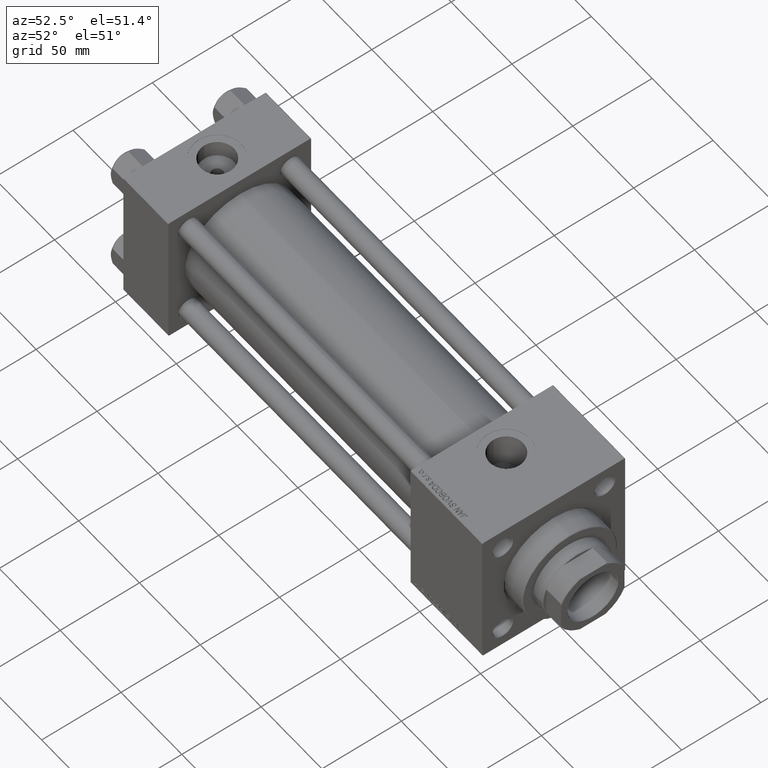
[diagram: clean part render]
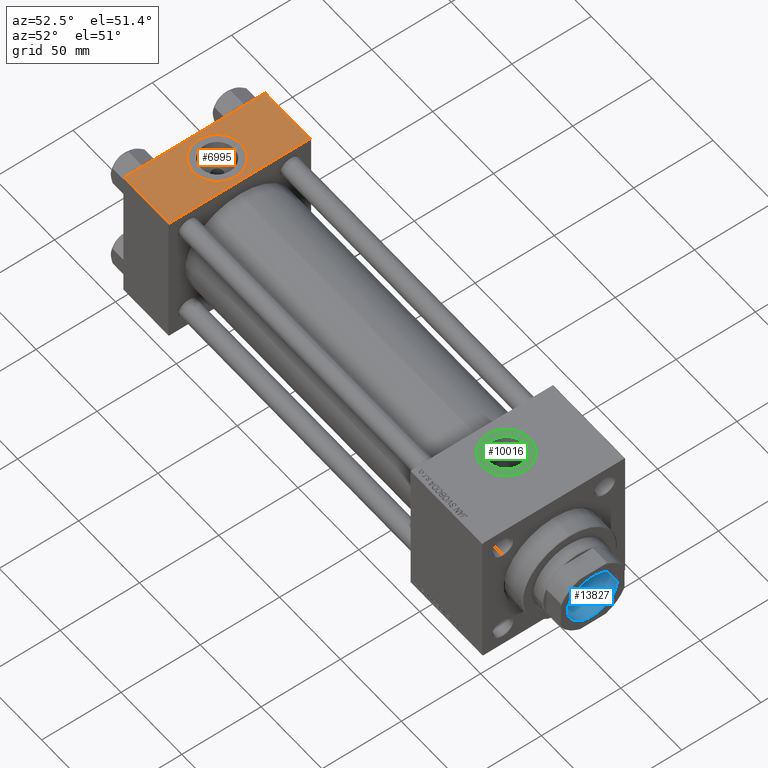
[diagram: same view with three faces highlighted in distinct colors, each labeled with its STEP entity id]
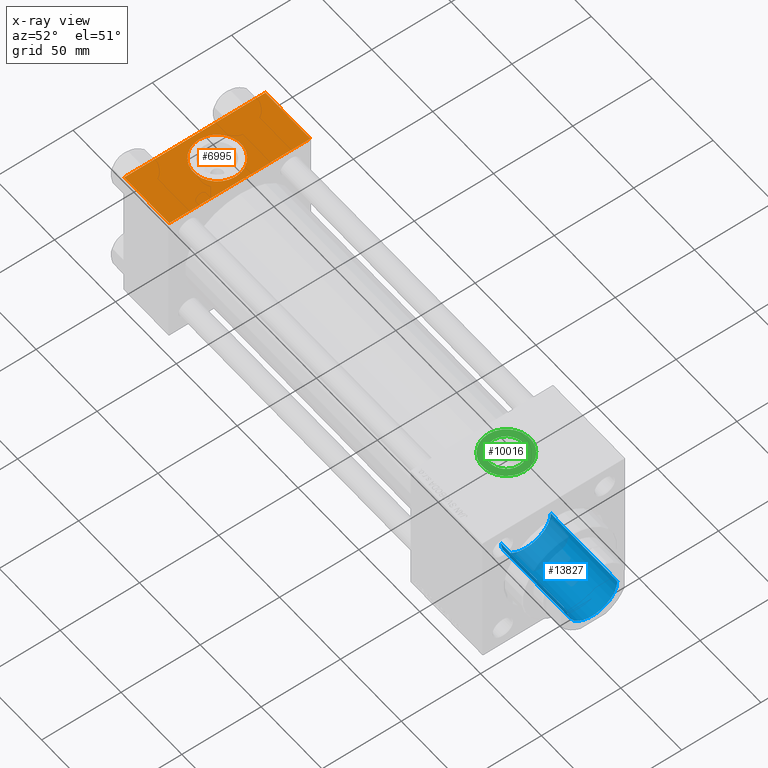
[diagram: x-ray of the same camera — body ghosted, the three highlighted faces saturated]
A machine part, auxiliary view with three faces highlighted in distinct colors.
The next image is the same camera in x-ray (body ghosted, the three faces saturated) — at least one of them is partly hidden behind the body in this view.
Their STEP definitions:

[orange] entity #6995 — the highlighted planar face has unit normal (0, 0, -1).
#206 = VERTEX_POINT ( 'NONE', #33917 ) ;
#226 = VECTOR ( 'NONE', #32681, 1000.000000000000000 ) ;
#262 = DIRECTION ( 'NONE',  ( 1.000000000000000000, 0.000000000000000000, 0.000000000000000000 ) ) ;
#1769 = CARTESIAN_POINT ( 'NONE',  ( 37.00000000000000000, 44.99999999999998579, 45.00000000000001421 ) ) ;
#2998 = EDGE_LOOP ( 'NONE', ( #35804, #23303, #18539, #45875 ) ) ;
#4481 = CARTESIAN_POINT ( 'NONE',  ( 0.000000000000000000, 44.49999999999998579, 45.00000000000001421 ) ) ;
#5704 = DIRECTION ( 'NONE',  ( 0.000000000000000000, -1.000000000000000000, -1.541976423090495387E-16 ) ) ;
#6379 = DIRECTION ( 'NONE',  ( 0.000000000000000000, 1.000000000000000000, 1.541976423090495633E-16 ) ) ;
#6995 = ADVANCED_FACE ( 'NONE', ( #44150, #40599 ), #13998, .F. ) ;
#10118 = EDGE_CURVE ( 'NONE', #34019, #26149, #33976, .T. ) ;
#10622 = EDGE_CURVE ( 'NONE', #206, #36725, #44726, .T. ) ;
#13831 = CIRCLE ( 'NONE', #48629, 15.00000000000000355 ) ;
#13998 = PLANE ( 'NONE',  #24963 ) ;
#16234 = DIRECTION ( 'NONE',  ( 0.000000000000000000, -1.000000000000000000, -1.541976423090495387E-16 ) ) ;
#16485 = CARTESIAN_POINT ( 'NONE',  ( 18.50000000000000000, -8.673617379884038628E-15, 45.00000000000000711 ) ) ;
#17067 = EDGE_CURVE ( 'NONE', #18453, #206, #26792, .T. ) ;
#17255 = LINE ( 'NONE', #41298, #226 ) ;
#18453 = VERTEX_POINT ( 'NONE', #20315 ) ;
#18539 = ORIENTED_EDGE ( 'NONE', *, *, #30656, .F. ) ;
#19924 = DIRECTION ( 'NONE',  ( -1.000000000000000000, 0.000000000000000000, 0.000000000000000000 ) ) ;
#20315 = CARTESIAN_POINT ( 'NONE',  ( 37.00000000000000000, 44.49999999999998579, 45.00000000000001421 ) ) ;
#21295 = ORIENTED_EDGE ( 'NONE', *, *, #49395, .F. ) ;
#21728 = EDGE_CURVE ( 'NONE', #36725, #38584, #17255, .T. ) ;
#21917 = CARTESIAN_POINT ( 'NONE',  ( 0.000000000000000000, 44.99999999999998579, 45.00000000000001421 ) ) ;
#22865 = VECTOR ( 'NONE', #19924, 1000.000000000000000 ) ;
#23303 = ORIENTED_EDGE ( 'NONE', *, *, #21728, .T. ) ;
#23490 = VECTOR ( 'NONE', #5704, 1000.000000000000000 ) ;
#24595 = CARTESIAN_POINT ( 'NONE',  ( 3.499999999999997780, -6.836647181163008250E-15, 45.00000000000000711 ) ) ;
#24963 = AXIS2_PLACEMENT_3D ( 'NONE', #41087, #44654, #6379 ) ;
#26149 = VERTEX_POINT ( 'NONE', #31393 ) ;
#26792 = LINE ( 'NONE', #4481, #22865 ) ;
#28823 = VECTOR ( 'NONE', #16234, 1000.000000000000000 ) ;
#29091 = AXIS2_PLACEMENT_3D ( 'NONE', #31169, #34971, #262 ) ;
#30656 = EDGE_CURVE ( 'NONE', #18453, #38584, #32668, .T. ) ;
#31169 = CARTESIAN_POINT ( 'NONE',  ( 18.50000000000000000, -8.673617379884038628E-15, 45.00000000000000711 ) ) ;
#31314 = CARTESIAN_POINT ( 'NONE',  ( 37.00000000000000000, -44.49999999999995737, 45.00000000000000000 ) ) ;
#31393 = CARTESIAN_POINT ( 'NONE',  ( 33.50000000000000000, -8.673617379884038628E-15, 45.00000000000000711 ) ) ;
#31922 = DIRECTION ( 'NONE',  ( 0.000000000000000000, 0.000000000000000000, 1.000000000000000000 ) ) ;
#32668 = LINE ( 'NONE', #1769, #28823 ) ;
#32681 = DIRECTION ( 'NONE',  ( 1.000000000000000000, 0.000000000000000000, 0.000000000000000000 ) ) ;
#33917 = CARTESIAN_POINT ( 'NONE',  ( 0.000000000000000000, 44.49999999999998579, 45.00000000000001421 ) ) ;
#33976 = CIRCLE ( 'NONE', #29091, 15.00000000000000355 ) ;
#34019 = VERTEX_POINT ( 'NONE', #24595 ) ;
#34971 = DIRECTION ( 'NONE',  ( 0.000000000000000000, 0.000000000000000000, 1.000000000000000000 ) ) ;
#35804 = ORIENTED_EDGE ( 'NONE', *, *, #10622, .T. ) ;
#36725 = VERTEX_POINT ( 'NONE', #40944 ) ;
#38584 = VERTEX_POINT ( 'NONE', #31314 ) ;
#40052 = ORIENTED_EDGE ( 'NONE', *, *, #10118, .F. ) ;
#40599 = FACE_OUTER_BOUND ( 'NONE', #2998, .T. ) ;
#40944 = CARTESIAN_POINT ( 'NONE',  ( 0.000000000000000000, -44.49999999999995737, 45.00000000000000000 ) ) ;
#41087 = CARTESIAN_POINT ( 'NONE',  ( 37.00000000000000000, 44.99999999999998579, 45.00000000000001421 ) ) ;
#41298 = CARTESIAN_POINT ( 'NONE',  ( 37.00000000000000000, -44.49999999999998579, 45.00000000000000000 ) ) ;
#43078 = EDGE_LOOP ( 'NONE', ( #21295, #40052 ) ) ;
#44150 = FACE_BOUND ( 'NONE', #43078, .T. ) ;
#44654 = DIRECTION ( 'NONE',  ( 0.000000000000000000, 1.541976423090495633E-16, -1.000000000000000000 ) ) ;
#44726 = LINE ( 'NONE', #21917, #23490 ) ;
#45875 = ORIENTED_EDGE ( 'NONE', *, *, #17067, .T. ) ;
#47647 = DIRECTION ( 'NONE',  ( 1.000000000000000000, 0.000000000000000000, 0.000000000000000000 ) ) ;
#48629 = AXIS2_PLACEMENT_3D ( 'NONE', #16485, #31922, #47647 ) ;
#49395 = EDGE_CURVE ( 'NONE', #26149, #34019, #13831, .T. ) ;

[blue] entity #13827 — the highlighted cylindrical surface (edge-blend (fillet) strip) has radius 15.75 mm, axis along (1, 0, 0).
#201 = ORIENTED_EDGE ( 'NONE', *, *, #31597, .F. ) ;
#992 = AXIS2_PLACEMENT_3D ( 'NONE', #7918, #15541, #43579 ) ;
#3362 = EDGE_LOOP ( 'NONE', ( #14418, #201, #26893, #13426 ) ) ;
#7918 = CARTESIAN_POINT ( 'NONE',  ( 0.000000000000000000, 0.000000000000000000, 289.6999999999998749 ) ) ;
#8228 = CARTESIAN_POINT ( 'NONE',  ( 15.74999999999998934, 0.000000000000000000, 235.0000000000000000 ) ) ;
#8329 = DIRECTION ( 'NONE',  ( 1.000000000000000000, 0.000000000000000000, 0.000000000000000000 ) ) ;
#9410 = CARTESIAN_POINT ( 'NONE',  ( 15.74999999999999289, 0.000000000000000000, 290.0000000000000000 ) ) ;
#9911 = DIRECTION ( 'NONE',  ( -0.000000000000000000, -0.000000000000000000, 1.000000000000000000 ) ) ;
#11302 = VERTEX_POINT ( 'NONE', #44599 ) ;
#12154 = VERTEX_POINT ( 'NONE', #46430 ) ;
#13426 = ORIENTED_EDGE ( 'NONE', *, *, #15734, .T. ) ;
#13827 = ADVANCED_FACE ( 'NONE', ( #32640 ), #44305, .F. ) ;
#14418 = ORIENTED_EDGE ( 'NONE', *, *, #43994, .F. ) ;
#15052 = CARTESIAN_POINT ( 'NONE',  ( -15.74999999999999289, 1.928818708657080556E-15, 289.6999999999998749 ) ) ;
#15215 = LINE ( 'NONE', #38011, #45234 ) ;
#15541 = DIRECTION ( 'NONE',  ( 0.000000000000000000, 0.000000000000000000, 1.000000000000000000 ) ) ;
#15734 = EDGE_CURVE ( 'NONE', #11302, #37901, #38204, .T. ) ;
#16294 = AXIS2_PLACEMENT_3D ( 'NONE', #36453, #21241, #43817 ) ;
#17910 = EDGE_CURVE ( 'NONE', #35530, #11302, #29162, .T. ) ;
#18974 = DIRECTION ( 'NONE',  ( -0.000000000000000000, -0.000000000000000000, 1.000000000000000000 ) ) ;
#21241 = DIRECTION ( 'NONE',  ( -0.000000000000000000, -0.000000000000000000, 1.000000000000000000 ) ) ;
#22315 = DIRECTION ( 'NONE',  ( -0.000000000000000000, -0.000000000000000000, 1.000000000000000000 ) ) ;
#23781 = CARTESIAN_POINT ( 'NONE',  ( 0.000000000000000000, 0.000000000000000000, 235.0000000000000000 ) ) ;
#26131 = VECTOR ( 'NONE', #9911, 1000.000000000000000 ) ;
#26893 = ORIENTED_EDGE ( 'NONE', *, *, #17910, .T. ) ;
#29162 = LINE ( 'NONE', #9410, #26131 ) ;
#31597 = EDGE_CURVE ( 'NONE', #35530, #12154, #47592, .T. ) ;
#32640 = FACE_OUTER_BOUND ( 'NONE', #3362, .T. ) ;
#35457 = AXIS2_PLACEMENT_3D ( 'NONE', #23781, #18974, #8329 ) ;
#35530 = VERTEX_POINT ( 'NONE', #8228 ) ;
#36453 = CARTESIAN_POINT ( 'NONE',  ( 0.000000000000000000, 0.000000000000000000, 290.0000000000000000 ) ) ;
#37901 = VERTEX_POINT ( 'NONE', #15052 ) ;
#38011 = CARTESIAN_POINT ( 'NONE',  ( -15.74999999999999289, 1.928818708657080556E-15, 290.0000000000000000 ) ) ;
#38204 = CIRCLE ( 'NONE', #992, 15.74999999999999289 ) ;
#43579 = DIRECTION ( 'NONE',  ( 1.000000000000000000, 0.000000000000000000, 0.000000000000000000 ) ) ;
#43817 = DIRECTION ( 'NONE',  ( 1.000000000000000000, 0.000000000000000000, 0.000000000000000000 ) ) ;
#43994 = EDGE_CURVE ( 'NONE', #12154, #37901, #15215, .T. ) ;
#44305 = CYLINDRICAL_SURFACE ( 'NONE', #16294, 15.74999999999999289 ) ;
#44599 = CARTESIAN_POINT ( 'NONE',  ( 15.74999999999999289, 0.000000000000000000, 289.6999999999998749 ) ) ;
#45234 = VECTOR ( 'NONE', #22315, 1000.000000000000000 ) ;
#46430 = CARTESIAN_POINT ( 'NONE',  ( -15.74999999999998934, 1.928818708657080161E-15, 235.0000000000000000 ) ) ;
#47592 = CIRCLE ( 'NONE', #35457, 15.74999999999998934 ) ;

[green] entity #10016 — the highlighted planar face has unit normal (0, 0, 1).
#1254 = EDGE_CURVE ( 'NONE', #47897, #28447, #47616, .T. ) ;
#1707 = EDGE_CURVE ( 'NONE', #20850, #44457, #20937, .T. ) ;
#2845 = DIRECTION ( 'NONE',  ( -0.000000000000000000, -0.000000000000000000, -1.000000000000000000 ) ) ;
#2941 = CARTESIAN_POINT ( 'NONE',  ( 266.4800000000000182, -5.655464058400803678E-15, 44.79999999999999005 ) ) ;
#6780 = EDGE_CURVE ( 'NONE', #28447, #47897, #39509, .T. ) ;
#9922 = PLANE ( 'NONE',  #35561 ) ;
#10016 = ADVANCED_FACE ( 'NONE', ( #44879, #37018 ), #9922, .T. ) ;
#10402 = AXIS2_PLACEMENT_3D ( 'NONE', #49275, #10507, #49530 ) ;
#10422 = DIRECTION ( 'NONE',  ( 1.000000000000000000, 0.000000000000000000, -0.000000000000000000 ) ) ;
#10507 = DIRECTION ( 'NONE',  ( 0.000000000000000000, 0.000000000000000000, 1.000000000000000000 ) ) ;
#13980 = DIRECTION ( 'NONE',  ( 0.000000000000000000, 0.000000000000000000, 1.000000000000000000 ) ) ;
#16436 = CIRCLE ( 'NONE', #35052, 10.47999999999998977 ) ;
#18521 = AXIS2_PLACEMENT_3D ( 'NONE', #32980, #2845, #33237 ) ;
#20850 = VERTEX_POINT ( 'NONE', #43313 ) ;
#20937 = CIRCLE ( 'NONE', #18521, 10.47999999999998977 ) ;
#22081 = CARTESIAN_POINT ( 'NONE',  ( 256.0000000000000000, -6.938893903907227589E-15, 44.79999999999999005 ) ) ;
#22334 = EDGE_LOOP ( 'NONE', ( #39510, #33853 ) ) ;
#22701 = EDGE_CURVE ( 'NONE', #44457, #20850, #16436, .T. ) ;
#25542 = EDGE_LOOP ( 'NONE', ( #31449, #37024 ) ) ;
#25656 = DIRECTION ( 'NONE',  ( -0.000000000000000000, -0.000000000000000000, -1.000000000000000000 ) ) ;
#28447 = VERTEX_POINT ( 'NONE', #36672 ) ;
#29935 = CARTESIAN_POINT ( 'NONE',  ( 241.0000000000000000, -5.101923705186193267E-15, 44.79999999999999005 ) ) ;
#29969 = DIRECTION ( 'NONE',  ( 1.000000000000000000, 0.000000000000000000, 0.000000000000000000 ) ) ;
#31449 = ORIENTED_EDGE ( 'NONE', *, *, #6780, .T. ) ;
#32980 = CARTESIAN_POINT ( 'NONE',  ( 256.0000000000000000, -6.938893903907227589E-15, 44.79999999999999005 ) ) ;
#33237 = DIRECTION ( 'NONE',  ( 1.000000000000000000, 0.000000000000000000, 0.000000000000000000 ) ) ;
#33254 = CARTESIAN_POINT ( 'NONE',  ( 256.0000000000000000, -6.938893903907227589E-15, 44.79999999999999005 ) ) ;
#33675 = DIRECTION ( 'NONE',  ( 0.000000000000000000, 0.000000000000000000, 1.000000000000000000 ) ) ;
#33853 = ORIENTED_EDGE ( 'NONE', *, *, #22701, .T. ) ;
#35052 = AXIS2_PLACEMENT_3D ( 'NONE', #33254, #25656, #29969 ) ;
#35561 = AXIS2_PLACEMENT_3D ( 'NONE', #22081, #13980, #10422 ) ;
#36672 = CARTESIAN_POINT ( 'NONE',  ( 271.0000000000000000, -6.938893903907227589E-15, 44.79999999999999005 ) ) ;
#37018 = FACE_OUTER_BOUND ( 'NONE', #25542, .T. ) ;
#37024 = ORIENTED_EDGE ( 'NONE', *, *, #1254, .T. ) ;
#37905 = AXIS2_PLACEMENT_3D ( 'NONE', #45603, #33675, #41539 ) ;
#39509 = CIRCLE ( 'NONE', #10402, 15.00000000000001421 ) ;
#39510 = ORIENTED_EDGE ( 'NONE', *, *, #1707, .T. ) ;
#41539 = DIRECTION ( 'NONE',  ( 1.000000000000000000, 0.000000000000000000, 0.000000000000000000 ) ) ;
#43313 = CARTESIAN_POINT ( 'NONE',  ( 245.5200000000000102, -6.938893903907227589E-15, 44.79999999999999005 ) ) ;
#44457 = VERTEX_POINT ( 'NONE', #2941 ) ;
#44879 = FACE_BOUND ( 'NONE', #22334, .T. ) ;
#45603 = CARTESIAN_POINT ( 'NONE',  ( 256.0000000000000000, -6.938893903907227589E-15, 44.79999999999999005 ) ) ;
#47616 = CIRCLE ( 'NONE', #37905, 15.00000000000001421 ) ;
#47897 = VERTEX_POINT ( 'NONE', #29935 ) ;
#49275 = CARTESIAN_POINT ( 'NONE',  ( 256.0000000000000000, -6.938893903907227589E-15, 44.79999999999999005 ) ) ;
#49530 = DIRECTION ( 'NONE',  ( 1.000000000000000000, 0.000000000000000000, 0.000000000000000000 ) ) ;